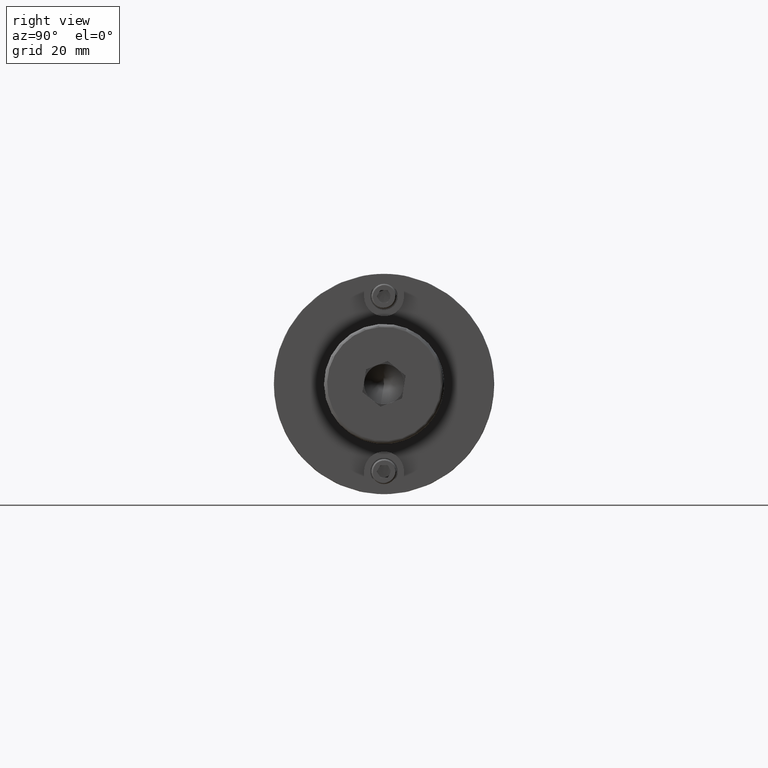
[diagram: clean part render]
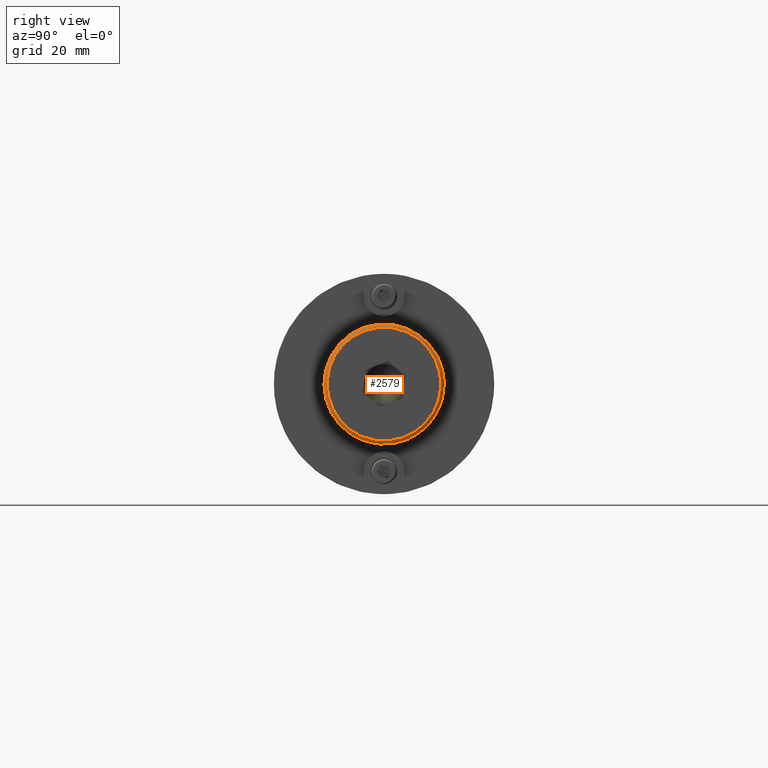
[diagram: same view with one face highlighted and labeled with its STEP entity id]
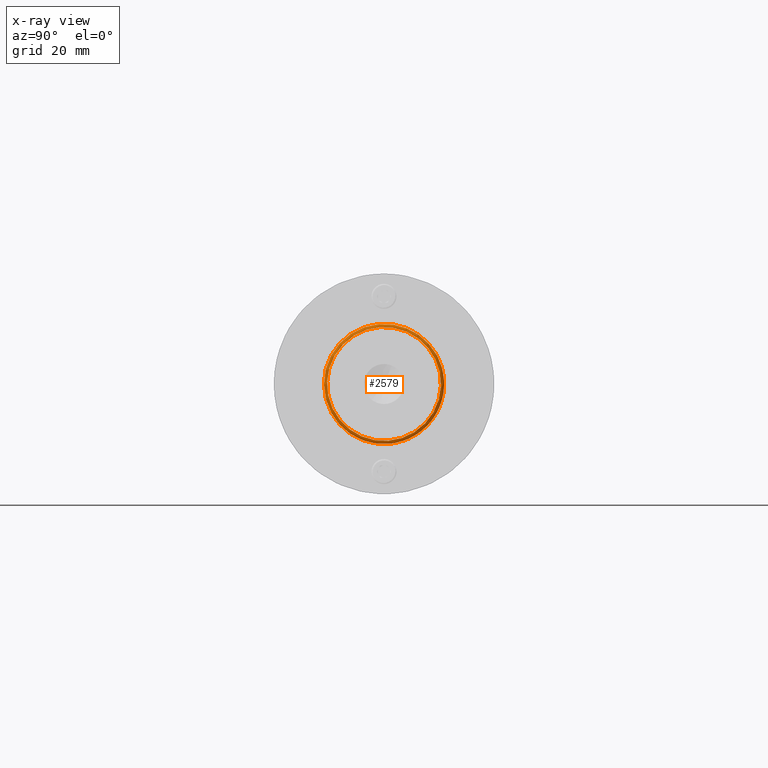
[diagram: x-ray of the same camera — body ghosted, the highlighted face saturated]
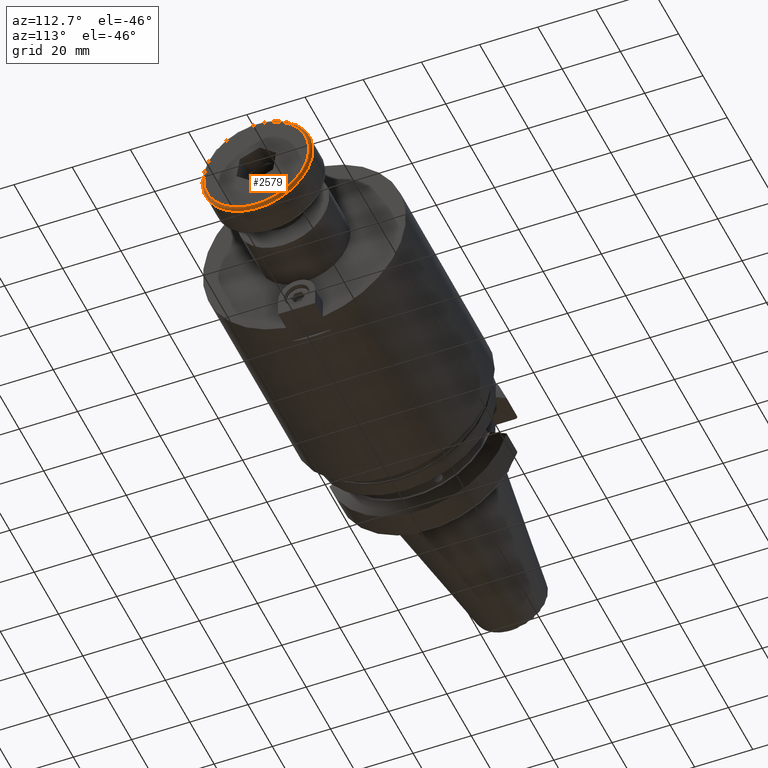
[diagram: same view with one face highlighted and labeled with its STEP entity id]
A machine part, right view. The second image highlights one B-rep face of the part: STEP entity #2579.
The next image is the same camera in x-ray: the body ghosted, the highlighted face saturated — about 0% of this face is hidden behind the body in this view.
A second angle (auxiliary view) of the same face is appended — the face is thin or edge-on in the first view.
In plain terms, the highlighted toroidal blend (fillet) surface has major radius 18.05 mm and minor (blend) radius 1 mm.
Its self-contained STEP definition (entity closure, byte-faithful):
#480=TOROIDAL_SURFACE('',#3024,18.05,1.);
#733=CIRCLE('',#3022,19.05);
#734=CIRCLE('',#3023,19.05);
#735=CIRCLE('',#3025,1.);
#736=CIRCLE('',#3026,18.05);
#876=FACE_OUTER_BOUND('',#1025,.T.);
#1025=EDGE_LOOP('',(#2388,#2389,#2390,#2391,#2392));
#1494=VERTEX_POINT('',#5047);
#1495=VERTEX_POINT('',#5049);
#1496=VERTEX_POINT('',#5053);
#1794=EDGE_CURVE('',#1495,#1494,#733,.T.);
#1795=EDGE_CURVE('',#1494,#1495,#734,.T.);
#1796=EDGE_CURVE('',#1495,#1496,#735,.T.);
#1797=EDGE_CURVE('',#1496,#1496,#736,.T.);
#2388=ORIENTED_EDGE('',*,*,#1794,.T.);
#2389=ORIENTED_EDGE('',*,*,#1795,.T.);
#2390=ORIENTED_EDGE('',*,*,#1796,.T.);
#2391=ORIENTED_EDGE('',*,*,#1797,.T.);
#2392=ORIENTED_EDGE('',*,*,#1796,.F.);
#2579=ADVANCED_FACE('',(#876),#480,.T.);
#3022=AXIS2_PLACEMENT_3D('',#5050,#3773,#3774);
#3023=AXIS2_PLACEMENT_3D('',#5051,#3775,#3776);
#3024=AXIS2_PLACEMENT_3D('',#5052,#3777,#3778);
#3025=AXIS2_PLACEMENT_3D('',#5054,#3779,#3780);
#3026=AXIS2_PLACEMENT_3D('',#5055,#3781,#3782);
#3773=DIRECTION('center_axis',(-1.,0.,0.));
#3774=DIRECTION('ref_axis',(0.,-1.,1.83697019872103E-16));
#3775=DIRECTION('center_axis',(-1.,0.,0.));
#3776=DIRECTION('ref_axis',(0.,-1.,1.83697019872103E-16));
#3777=DIRECTION('center_axis',(1.,0.,0.));
#3778=DIRECTION('ref_axis',(0.,0.,-1.));
#3779=DIRECTION('center_axis',(0.,-1.,-1.22464679914735E-16));
#3780=DIRECTION('ref_axis',(0.,-1.22464679914735E-16,1.));
#3781=DIRECTION('center_axis',(1.,0.,0.));
#3782=DIRECTION('ref_axis',(0.,-1.,1.83697019872103E-16));
#5047=CARTESIAN_POINT('',(1.,-19.05,-2.33295215237571E-15));
#5049=CARTESIAN_POINT('',(1.,-2.33295215237571E-15,19.05));
#5050=CARTESIAN_POINT('Origin',(1.,0.,0.));
#5051=CARTESIAN_POINT('Origin',(1.,0.,0.));
#5052=CARTESIAN_POINT('Origin',(1.,0.,0.));
#5053=CARTESIAN_POINT('',(0.,-2.21048747246097E-15,18.05));
#5054=CARTESIAN_POINT('Origin',(1.,-2.21048747246097E-15,18.05));
#5055=CARTESIAN_POINT('Origin',(0.,0.,0.));